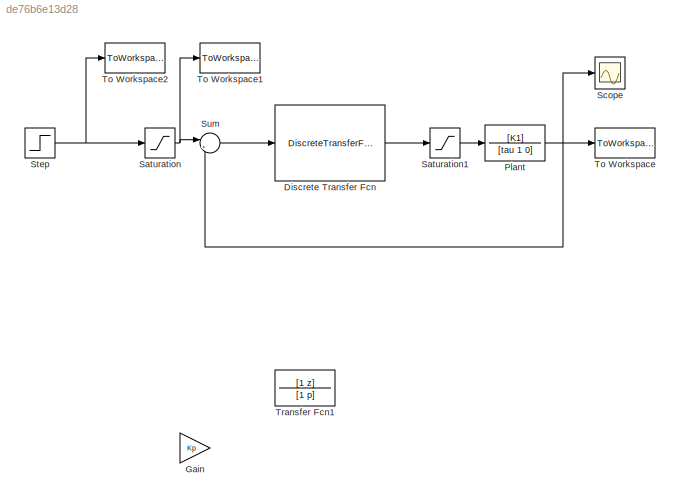
MODEL slx_de76b6e13d28
KIND model
CONFIG AbsTol = auto
CONFIG EnableMultiTasking = off
CONFIG FixedStep = auto
CONFIG MaxStep = auto
CONFIG MinStep = auto
CONFIG RelTol = 1e-3
CONFIG SampleTimeConstraint = Unconstrained
CONFIG Solver = VariableStepAuto
CONFIG SolverName = VariableStepAuto
CONFIG StartTime = 0.0
CONFIG StopTime = 2
BLOCK [DiscreteTransferFcn] Discrete Transfer Fcn
  Denominator = [C_D.Denominator{1}(1) C_D.Denominator{1}(2)]
  InputPortMap = u0
  Numerator = [C_D.Numerator{1}(1) C_D.Numerator{1}(2)]
  Ports = [1, 1]
  SampleTime = T
BLOCK [Gain] Gain
  Gain = Kp
  OutDataTypeStr = Inherit: Inherit via internal rule
  ParamDataTypeStr = Inherit: Inherit via internal rule
  SaturateOnIntegerOverflow = off
BLOCK [TransferFcn] Plant
  Denominator = [tau 1 0]
  Numerator = [K1]
BLOCK [Saturate] Saturation
  InputPortMap = u0
  LowerLimit = -0.785
  Ports = [1, 1]
  UpperLimit = 0.785
BLOCK [Saturate] Saturation1
  InputPortMap = u0
  LowerLimit = -6
  Ports = [1, 1]
  UpperLimit = 6
BLOCK [Scope] Scope
  NumInputPorts = 1
  Ports = [1]
  ScopeSpecificationString = Simulink.scopes.TimeScopeBlockCfg('CurrentConfiguration', extmgr.ConfigurationSet(extmgr.Configuration('Core','General UI',true),extmgr.Configuration('Core','Source UI',true),extmgr.Configuration('Sources','WiredSimulink',true),extmgr.Configuration('Visuals','Time Domain',true,'SerializedDisplays',{struct('MinYLimReal','-0.91871','MaxYLimReal','0.91156','YLabelReal','','MinYLimMag','0.00000','MaxY...<+1380ch>
BLOCK [Step] Step
  After = 0.7
  Before = -0.7
  SampleTime = 0
BLOCK [Sum] Sum
  IconShape = round
  InputSameDT = off
  Inputs = |+-
  OutDataTypeStr = Inherit: Inherit via internal rule
  Ports = [2, 1]
  SaturateOnIntegerOverflow = off
BLOCK [ToWorkspace] To Workspace
  FixptAsFi = on
  MaxDataPoints = inf
  Ports = [1]
  SampleTime = -1
  Save2DSignal = 3-D array (concatenate along third dimension)
  SaveFormat = Timeseries
  VariableName = theta_out
BLOCK [ToWorkspace] To Workspace1
  FixptAsFi = on
  MaxDataPoints = inf
  Ports = [1]
  SampleTime = -1
  Save2DSignal = 3-D array (concatenate along third dimension)
  SaveFormat = Timeseries
  VariableName = filtered_contol
BLOCK [ToWorkspace] To Workspace2
  FixptAsFi = on
  MaxDataPoints = inf
  Ports = [1]
  SampleTime = -1
  Save2DSignal = 3-D array (concatenate along third dimension)
  SaveFormat = Timeseries
  VariableName = input_sig
BLOCK [TransferFcn] Transfer Fcn1
  Denominator = [1 p]
  Numerator = [1 z]
LINE Discrete Transfer Fcn:1 -> Saturation1:1
NET Plant:1 -> Scope:1, Sum:2, To Workspace:1
LINE Saturation1:1 -> Plant:1
NET Saturation:1 -> Sum:1, To Workspace1:1
NET Step:1 -> Saturation:1, To Workspace2:1
LINE Sum:1 -> Discrete Transfer Fcn:1
note: NET lines group one-source signal fan-out (src -> all destinations, sorted); 1:1 wires keep LINE
